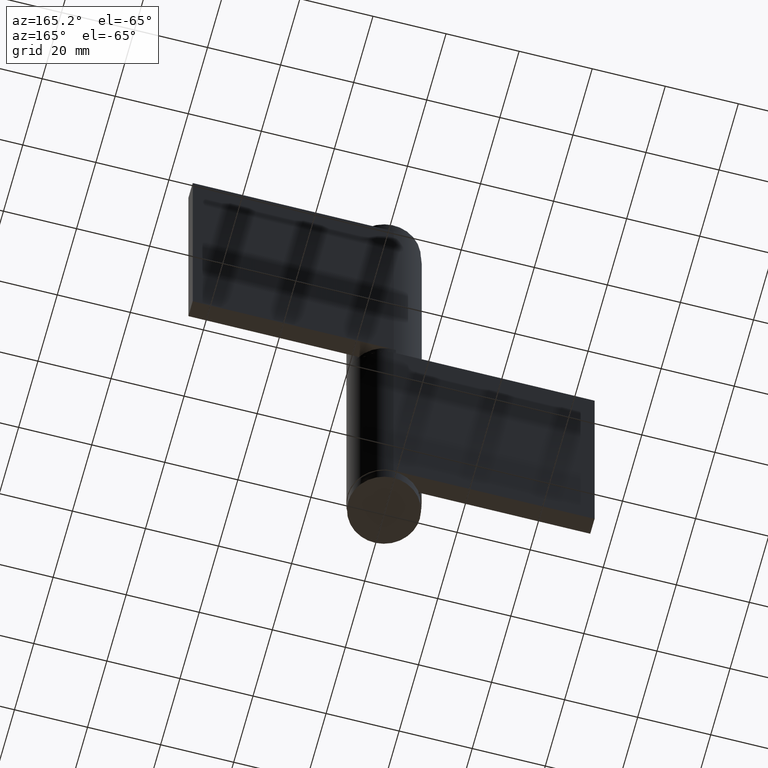
[diagram: clean part render]
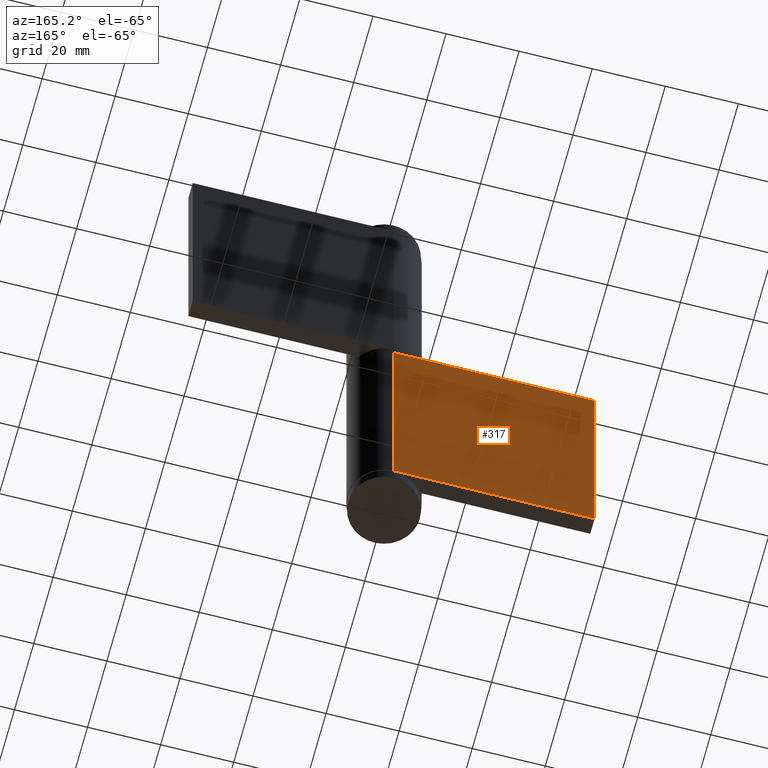
[diagram: same view with one face highlighted and labeled with its STEP entity id]
A machine part, auxiliary view. The second image highlights one B-rep face of the part: STEP entity #317.
In plain terms, the highlighted face is a freeform B-spline surface patch.
Its self-contained STEP definition (entity closure, byte-faithful):
#51=CARTESIAN_POINT('',(-55.0,10.0,0.0));
#52=VERTEX_POINT('',#51);
#58=CARTESIAN_POINT('',(0.0,10.0,0.0));
#59=VERTEX_POINT('',#58);
#60=CARTESIAN_POINT('',(-55.0,10.0,0.0));
#61=CARTESIAN_POINT('',(0.0,10.0,0.0));
#62=QUASI_UNIFORM_CURVE('',1,(#60,#61),.UNSPECIFIED.,.F.,.U.);
#63=EDGE_CURVE('',#52,#59,#62,.T.);
#129=CARTESIAN_POINT('',(-55.0,10.0,74.0));
#130=VERTEX_POINT('',#129);
#171=CARTESIAN_POINT('',(0.0,10.0,74.0));
#172=VERTEX_POINT('',#171);
#192=CARTESIAN_POINT('',(-55.0,10.0,74.0));
#193=CARTESIAN_POINT('',(0.0,10.0,74.0));
#194=QUASI_UNIFORM_CURVE('',1,(#192,#193),.UNSPECIFIED.,.F.,.U.);
#195=EDGE_CURVE('',#130,#172,#194,.T.);
#292=CARTESIAN_POINT('',(0.0,10.0,74.0));
#293=CARTESIAN_POINT('',(0.0,10.0,0.0));
#294=QUASI_UNIFORM_CURVE('',1,(#292,#293),.UNSPECIFIED.,.F.,.U.);
#295=EDGE_CURVE('',#172,#59,#294,.T.);
#302=CARTESIAN_POINT('',(-57.747249893399328,10.0,-3.696299856573641));
#303=CARTESIAN_POINT('',(-57.747249893399328,10.0,77.696301841408314));
#304=CARTESIAN_POINT('',(2.747251368614286,10.0,-3.696299856573641));
#305=CARTESIAN_POINT('',(2.747251368614286,10.0,77.696301841408314));
#306=B_SPLINE_SURFACE_WITH_KNOTS('',1,1,((#302,#304),(#303,#305)),.UNSPECIFIED.,.F.,.F.,.U.,(2,2),(2,2),(0.0,81.392601697981959),(0.0,60.494501262013607),.UNSPECIFIED.);
#307=ORIENTED_EDGE('',*,*,#63,.F.);
#308=CARTESIAN_POINT('',(-55.0,10.0,74.0));
#309=CARTESIAN_POINT('',(-55.0,10.0,0.0));
#310=QUASI_UNIFORM_CURVE('',1,(#308,#309),.UNSPECIFIED.,.F.,.U.);
#311=EDGE_CURVE('',#130,#52,#310,.T.);
#312=ORIENTED_EDGE('',*,*,#311,.F.);
#313=ORIENTED_EDGE('',*,*,#195,.T.);
#314=ORIENTED_EDGE('',*,*,#295,.T.);
#315=EDGE_LOOP('',(#307,#312,#313,#314));
#316=FACE_OUTER_BOUND('',#315,.T.);
#317=ADVANCED_FACE('',(#316),#306,.T.);